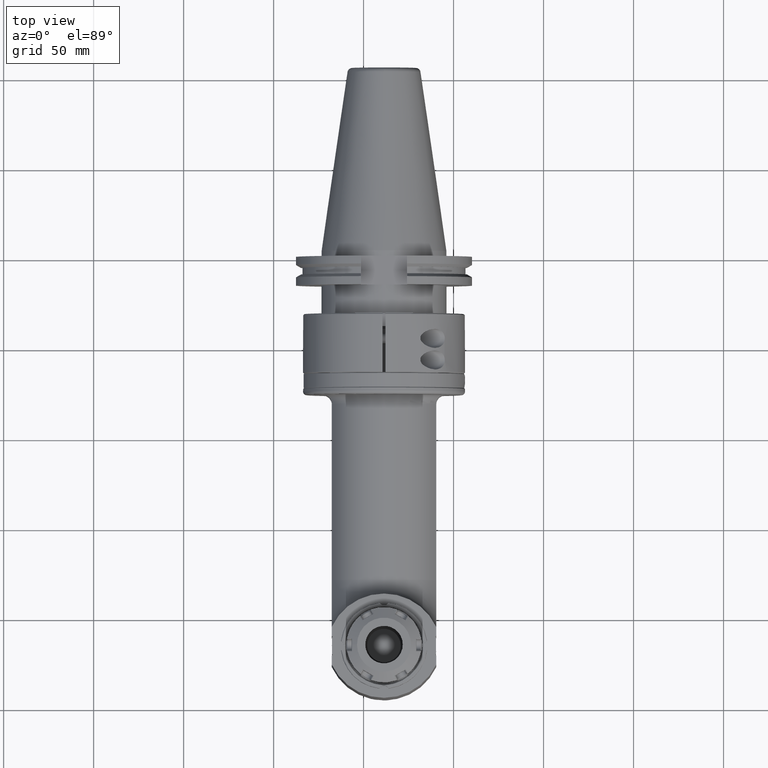
[diagram: clean part render]
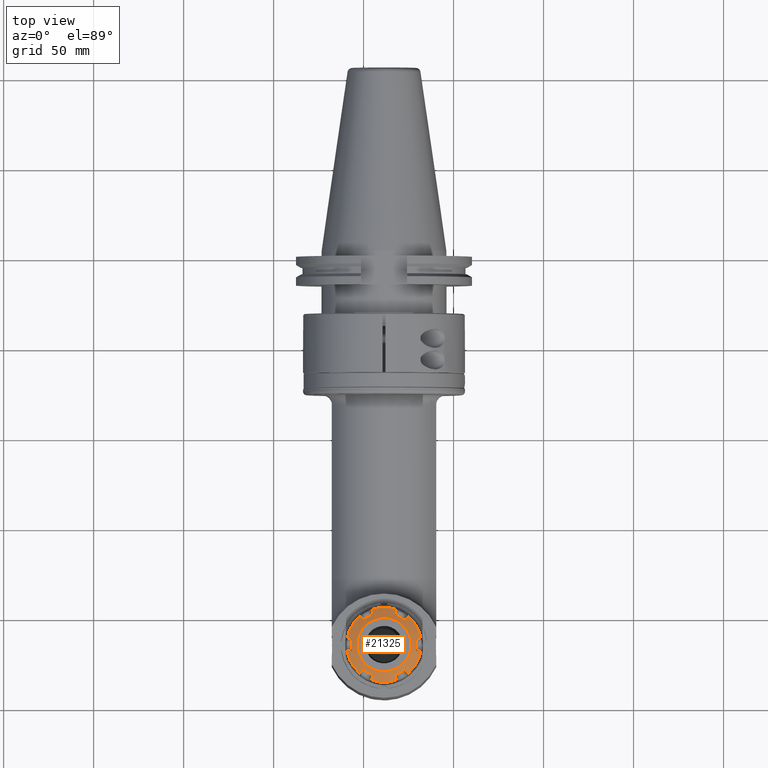
[diagram: same view with one face highlighted and labeled with its STEP entity id]
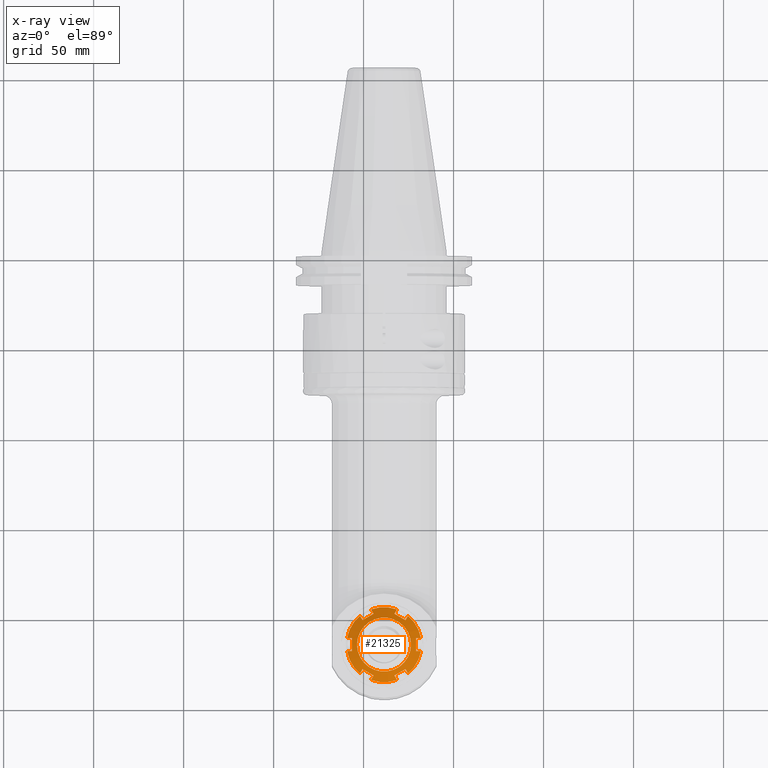
[diagram: x-ray of the same camera — body ghosted, the highlighted face saturated]
A machine part, top view. The second image highlights one B-rep face of the part: STEP entity #21325.
The next image is the same camera in x-ray: the body ghosted, the highlighted face saturated — about 0% of this face is hidden behind the body in this view.
In plain terms, the highlighted conical surface has half-angle 60 deg.
Its self-contained STEP definition (entity closure, byte-faithful):
#38=(
BOUNDED_CURVE()
B_SPLINE_CURVE(2,(#34495,#34496,#34497),.UNSPECIFIED.,.F.,.F.)
B_SPLINE_CURVE_WITH_KNOTS((3,3),(-5.71480727500744,-5.70939579705598),
 .UNSPECIFIED.)
CURVE()
GEOMETRIC_REPRESENTATION_ITEM()
RATIONAL_B_SPLINE_CURVE((1.38530112424961,1.38617910511655,1.38705507773956))
REPRESENTATION_ITEM('')
);
#39=(
BOUNDED_CURVE()
B_SPLINE_CURVE(2,(#34522,#34523,#34524),.UNSPECIFIED.,.F.,.F.)
B_SPLINE_CURVE_WITH_KNOTS((3,3),(5.70939541777021,5.71480727411024),
 .UNSPECIFIED.)
CURVE()
GEOMETRIC_REPRESENTATION_ITEM()
RATIONAL_B_SPLINE_CURVE((1.38705520009317,1.38617916635966,1.38530112410136))
REPRESENTATION_ITEM('')
);
#40=(
BOUNDED_CURVE()
B_SPLINE_CURVE(2,(#34526,#34527,#34528),.UNSPECIFIED.,.F.,.F.)
B_SPLINE_CURVE_WITH_KNOTS((3,3),(0.983136933448719,0.988548446117281),
 .UNSPECIFIED.)
CURVE()
GEOMETRIC_REPRESENTATION_ITEM()
RATIONAL_B_SPLINE_CURVE((1.38530112341754,1.38617910991716,1.38705508814708))
REPRESENTATION_ITEM('')
);
#41=(
BOUNDED_CURVE()
B_SPLINE_CURVE(2,(#34554,#34555,#34556),.UNSPECIFIED.,.F.,.F.)
B_SPLINE_CURVE_WITH_KNOTS((3,3),(5.70939569852918,5.7148072694588),
 .UNSPECIFIED.)
CURVE()
GEOMETRIC_REPRESENTATION_ITEM()
RATIONAL_B_SPLINE_CURVE((1.38705510692146,1.38617911928225,1.38530112333009))
REPRESENTATION_ITEM('')
);
#42=(
BOUNDED_CURVE()
B_SPLINE_CURVE(2,(#34558,#34559,#34560),.UNSPECIFIED.,.F.,.F.)
B_SPLINE_CURVE_WITH_KNOTS((3,3),(0.983136932263361,0.988548410212516),
 .UNSPECIFIED.)
CURVE()
GEOMETRIC_REPRESENTATION_ITEM()
RATIONAL_B_SPLINE_CURVE((1.3853011229098,1.38617910377642,1.38705507639911))
REPRESENTATION_ITEM('')
);
#43=(
BOUNDED_CURVE()
B_SPLINE_CURVE(2,(#34586,#34587,#34588),.UNSPECIFIED.,.F.,.F.)
B_SPLINE_CURVE_WITH_KNOTS((3,3),(5.70939596718503,5.71480727067395),
 .UNSPECIFIED.)
CURVE()
GEOMETRIC_REPRESENTATION_ITEM()
RATIONAL_B_SPLINE_CURVE((1.38705502054067,1.38617907609367,1.38530112353222))
REPRESENTATION_ITEM('')
);
#44=(
BOUNDED_CURVE()
B_SPLINE_CURVE(2,(#34617,#34618,#34619),.UNSPECIFIED.,.F.,.F.)
B_SPLINE_CURVE_WITH_KNOTS((3,3),(5.70939589990304,5.71480727411024),
 .UNSPECIFIED.)
CURVE()
GEOMETRIC_REPRESENTATION_ITEM()
RATIONAL_B_SPLINE_CURVE((1.38705504400452,1.3861790881364,1.38530112410135))
REPRESENTATION_ITEM('')
);
#45=(
BOUNDED_CURVE()
B_SPLINE_CURVE(2,(#34621,#34622,#34623),.UNSPECIFIED.,.F.,.F.)
B_SPLINE_CURVE_WITH_KNOTS((3,3),(0.983136933448721,0.988548446117285),
 .UNSPECIFIED.)
CURVE()
GEOMETRIC_REPRESENTATION_ITEM()
RATIONAL_B_SPLINE_CURVE((1.38530112341754,1.38617910991716,1.38705508814709))
REPRESENTATION_ITEM('')
);
#46=(
BOUNDED_CURVE()
B_SPLINE_CURVE(2,(#34649,#34650,#34651),.UNSPECIFIED.,.F.,.F.)
B_SPLINE_CURVE_WITH_KNOTS((3,3),(5.70939579745378,5.71480726945879),
 .UNSPECIFIED.)
CURVE()
GEOMETRIC_REPRESENTATION_ITEM()
RATIONAL_B_SPLINE_CURVE((1.387055074895,1.38617910323231,1.3853011233301))
REPRESENTATION_ITEM('')
);
#47=(
BOUNDED_CURVE()
B_SPLINE_CURVE(2,(#34653,#34654,#34655),.UNSPECIFIED.,.F.,.F.)
B_SPLINE_CURVE_WITH_KNOTS((3,3),(0.983136932263362,0.988548410212518),
 .UNSPECIFIED.)
CURVE()
GEOMETRIC_REPRESENTATION_ITEM()
RATIONAL_B_SPLINE_CURVE((1.3853011229098,1.38617910377642,1.38705507639911))
REPRESENTATION_ITEM('')
);
#48=(
BOUNDED_CURVE()
B_SPLINE_CURVE(2,(#34681,#34682,#34683),.UNSPECIFIED.,.F.,.F.)
B_SPLINE_CURVE_WITH_KNOTS((3,3),(5.70939579867006,5.71480727067391),
 .UNSPECIFIED.)
CURVE()
GEOMETRIC_REPRESENTATION_ITEM()
RATIONAL_B_SPLINE_CURVE((1.38705507509674,1.38617910343424,1.38530112353223))
REPRESENTATION_ITEM('')
);
#49=(
BOUNDED_CURVE()
B_SPLINE_CURVE(2,(#34685,#34686,#34687),.UNSPECIFIED.,.F.,.F.)
B_SPLINE_CURVE_WITH_KNOTS((3,3),(-5.71480727500743,-5.70939579705598),
 .UNSPECIFIED.)
CURVE()
GEOMETRIC_REPRESENTATION_ITEM()
RATIONAL_B_SPLINE_CURVE((1.38530112424962,1.38617910511655,1.38705507773956))
REPRESENTATION_ITEM('')
);
#159=CONICAL_SURFACE('',#22859,0.705708661417323,1.0471975511966);
#1297=B_SPLINE_CURVE_WITH_KNOTS('',3,(#34509,#34510,#34511,#34512,#34513,
#34514),.UNSPECIFIED.,.F.,.F.,(4,2,4),(1.1437518864715E-6,0.179082550714123,
0.355925674934522),.UNSPECIFIED.);
#1298=B_SPLINE_CURVE_WITH_KNOTS('',3,(#34516,#34517,#34518,#34519,#34520,
#34521),.UNSPECIFIED.,.F.,.F.,(4,2,4),(8.81218616852435E-6,0.161408135810613,
0.317184350866086),.UNSPECIFIED.);
#1299=B_SPLINE_CURVE_WITH_KNOTS('',3,(#34530,#34531,#34532,#34533,#34534,
#34535),.UNSPECIFIED.,.F.,.F.,(4,2,4),(9.99999962096589E-7,0.154867603608836,
0.315885763912608),.UNSPECIFIED.);
#1300=B_SPLINE_CURVE_WITH_KNOTS('',3,(#34537,#34538,#34539,#34540,#34541,
#34542,#34543,#34544,#34545,#34546),.UNSPECIFIED.,.F.,.F.,(4,2,2,2,4),(6.92224531232847E-6,
0.178809516979941,0.355603922170857,0.531692687036744,0.711222388679774),
 .UNSPECIFIED.);
#1301=B_SPLINE_CURVE_WITH_KNOTS('',3,(#34548,#34549,#34550,#34551,#34552,
#34553),.UNSPECIFIED.,.F.,.F.,(4,2,4),(3.031752801579E-7,0.161653092336991,
0.317218719485604),.UNSPECIFIED.);
#1302=B_SPLINE_CURVE_WITH_KNOTS('',3,(#34562,#34563,#34564,#34565,#34566,
#34567),.UNSPECIFIED.,.F.,.F.,(4,2,4),(9.99999963141596E-7,0.154834427787643,
0.315881929564567),.UNSPECIFIED.);
#1303=B_SPLINE_CURVE_WITH_KNOTS('',3,(#34569,#34570,#34571,#34572,#34573,
#34574,#34575,#34576,#34577,#34578),.UNSPECIFIED.,.F.,.F.,(4,2,2,2,4),(1.00662526687387E-5,
0.179957906361474,0.356455261793115,0.533654497714069,0.712877034540706),
 .UNSPECIFIED.);
#1304=B_SPLINE_CURVE_WITH_KNOTS('',3,(#34580,#34581,#34582,#34583,#34584,
#34585),.UNSPECIFIED.,.F.,.F.,(4,2,4),(4.20002758120641E-6,0.161872951618232,
0.317243653445743),.UNSPECIFIED.);
#1305=B_SPLINE_CURVE_WITH_KNOTS('',3,(#34590,#34591,#34592,#34593,#34594,
#34595),.UNSPECIFIED.,.F.,.F.,(4,2,4),(9.99999961785235E-7,0.154834279668677,
0.315869180523986),.UNSPECIFIED.);
#1306=B_SPLINE_CURVE_WITH_KNOTS('',3,(#34597,#34598,#34599,#34600,#34601,
#34602),.UNSPECIFIED.,.F.,.F.,(4,2,4),(7.37356110766668E-6,0.17680702076961,
0.355849967192737),.UNSPECIFIED.);
#1307=B_SPLINE_CURVE_WITH_KNOTS('',3,(#34604,#34605,#34606,#34607,#34608,
#34609),.UNSPECIFIED.,.F.,.F.,(4,2,4),(1.1437518261892E-6,0.179082494417271,
0.355925381358529),.UNSPECIFIED.);
#1308=B_SPLINE_CURVE_WITH_KNOTS('',3,(#34611,#34612,#34613,#34614,#34615,
#34616),.UNSPECIFIED.,.F.,.F.,(4,2,4),(8.79176390152351E-6,0.161813927913795,
0.317235615422985),.UNSPECIFIED.);
#1309=B_SPLINE_CURVE_WITH_KNOTS('',3,(#34625,#34626,#34627,#34628,#34629,
#34630),.UNSPECIFIED.,.F.,.F.,(4,2,4),(9.99999962413875E-7,0.154867093879018,
0.315885763931179),.UNSPECIFIED.);
#1310=B_SPLINE_CURVE_WITH_KNOTS('',3,(#34632,#34633,#34634,#34635,#34636,
#34637,#34638,#34639,#34640,#34641),.UNSPECIFIED.,.F.,.F.,(4,2,2,2,4),(6.92224534410275E-6,
0.178809510055919,0.355603908359235,0.531692682473191,0.711222337863822),
 .UNSPECIFIED.);
#1311=B_SPLINE_CURVE_WITH_KNOTS('',3,(#34643,#34644,#34645,#34646,#34647,
#34648),.UNSPECIFIED.,.F.,.F.,(4,2,4),(3.24065266827637E-7,0.161736173359822,
0.317229355839682),.UNSPECIFIED.);
#1312=B_SPLINE_CURVE_WITH_KNOTS('',3,(#34657,#34658,#34659,#34660,#34661,
#34662),.UNSPECIFIED.,.F.,.F.,(4,2,4),(9.99999959047533E-7,0.154834427782428,
0.31588192955788),.UNSPECIFIED.);
#1313=B_SPLINE_CURVE_WITH_KNOTS('',3,(#34664,#34665,#34666,#34667,#34668,
#34669,#34670,#34671,#34672,#34673),.UNSPECIFIED.,.F.,.F.,(4,2,2,2,4),(1.00662526271291E-5,
0.179957918310093,0.356455285255329,0.533654498813924,0.712877120887501),
 .UNSPECIFIED.);
#1314=B_SPLINE_CURVE_WITH_KNOTS('',3,(#34675,#34676,#34677,#34678,#34679,
#34680),.UNSPECIFIED.,.F.,.F.,(4,2,4),(4.15167660907887E-6,0.161732284549731,
0.317225240770883),.UNSPECIFIED.);
#1315=B_SPLINE_CURVE_WITH_KNOTS('',3,(#34689,#34690,#34691,#34692,#34693,
#34694),.UNSPECIFIED.,.F.,.F.,(4,2,4),(9.9999996134616E-7,0.154834789478253,
0.315869180511777),.UNSPECIFIED.);
#1316=B_SPLINE_CURVE_WITH_KNOTS('',3,(#34695,#34696,#34697,#34698,#34699,
#34700),.UNSPECIFIED.,.F.,.F.,(4,2,4),(7.37356111511949E-6,0.176807020769685,
0.355849967192694),.UNSPECIFIED.);
#1752=FACE_OUTER_BOUND('',#3028,.T.);
#3028=EDGE_LOOP('',(#15974,#15975,#15976,#15977,#15978,#15979,#15980,#15981,
#15982,#15983,#15984,#15985,#15986,#15987,#15988,#15989,#15990,#15991,#15992,
#15993,#15994,#15995,#15996,#15997,#15998,#15999,#16000,#16001,#16002,#16003,
#16004,#16005,#16006,#16007,#16008,#16009,#16010,#16011,#16012,#16013,#16014));
#4376=CIRCLE('',#22852,0.820866141732283);
#4377=CIRCLE('',#22853,0.820866141732284);
#4378=CIRCLE('',#22854,0.820866141732284);
#4379=CIRCLE('',#22855,0.820866141732284);
#4380=CIRCLE('',#22856,0.820866141732284);
#4381=CIRCLE('',#22857,0.820866141732283);
#4382=CIRCLE('',#22860,0.590551181102362);
#5384=LINE('',#34702,#7507);
#7507=VECTOR('',#25900,0.705708661417323);
#9700=VERTEX_POINT('',#34180);
#9701=VERTEX_POINT('',#34182);
#9704=VERTEX_POINT('',#34213);
#9705=VERTEX_POINT('',#34215);
#9708=VERTEX_POINT('',#34246);
#9709=VERTEX_POINT('',#34248);
#9713=VERTEX_POINT('',#34283);
#9714=VERTEX_POINT('',#34285);
#9717=VERTEX_POINT('',#34316);
#9718=VERTEX_POINT('',#34318);
#9721=VERTEX_POINT('',#34349);
#9722=VERTEX_POINT('',#34351);
#9727=VERTEX_POINT('',#34494);
#9729=VERTEX_POINT('',#34507);
#9730=VERTEX_POINT('',#34508);
#9731=VERTEX_POINT('',#34515);
#9732=VERTEX_POINT('',#34525);
#9733=VERTEX_POINT('',#34529);
#9734=VERTEX_POINT('',#34536);
#9735=VERTEX_POINT('',#34547);
#9736=VERTEX_POINT('',#34557);
#9737=VERTEX_POINT('',#34561);
#9738=VERTEX_POINT('',#34568);
#9739=VERTEX_POINT('',#34579);
#9740=VERTEX_POINT('',#34589);
#9741=VERTEX_POINT('',#34596);
#9742=VERTEX_POINT('',#34603);
#9743=VERTEX_POINT('',#34610);
#9744=VERTEX_POINT('',#34620);
#9745=VERTEX_POINT('',#34624);
#9746=VERTEX_POINT('',#34631);
#9747=VERTEX_POINT('',#34642);
#9748=VERTEX_POINT('',#34652);
#9749=VERTEX_POINT('',#34656);
#9750=VERTEX_POINT('',#34663);
#9751=VERTEX_POINT('',#34674);
#9752=VERTEX_POINT('',#34684);
#9753=VERTEX_POINT('',#34688);
#9754=VERTEX_POINT('',#34701);
#12047=EDGE_CURVE('',#9700,#9701,#4376,.T.);
#12051=EDGE_CURVE('',#9704,#9705,#4377,.T.);
#12055=EDGE_CURVE('',#9708,#9709,#4378,.T.);
#12061=EDGE_CURVE('',#9714,#9713,#4379,.T.);
#12065=EDGE_CURVE('',#9718,#9717,#4380,.T.);
#12069=EDGE_CURVE('',#9722,#9721,#4381,.T.);
#12077=EDGE_CURVE('',#9713,#9727,#38,.T.);
#12080=EDGE_CURVE('',#9729,#9730,#1297,.T.);
#12081=EDGE_CURVE('',#9730,#9731,#1298,.T.);
#12082=EDGE_CURVE('',#9731,#9722,#39,.T.);
#12083=EDGE_CURVE('',#9721,#9732,#40,.T.);
#12084=EDGE_CURVE('',#9732,#9733,#1299,.T.);
#12085=EDGE_CURVE('',#9733,#9734,#1300,.T.);
#12086=EDGE_CURVE('',#9734,#9735,#1301,.T.);
#12087=EDGE_CURVE('',#9735,#9718,#41,.T.);
#12088=EDGE_CURVE('',#9717,#9736,#42,.T.);
#12089=EDGE_CURVE('',#9736,#9737,#1302,.T.);
#12090=EDGE_CURVE('',#9737,#9738,#1303,.T.);
#12091=EDGE_CURVE('',#9738,#9739,#1304,.T.);
#12092=EDGE_CURVE('',#9739,#9714,#43,.T.);
#12093=EDGE_CURVE('',#9727,#9740,#1305,.T.);
#12094=EDGE_CURVE('',#9740,#9741,#1306,.T.);
#12095=EDGE_CURVE('',#9741,#9742,#1307,.T.);
#12096=EDGE_CURVE('',#9742,#9743,#1308,.T.);
#12097=EDGE_CURVE('',#9743,#9709,#44,.T.);
#12098=EDGE_CURVE('',#9708,#9744,#45,.T.);
#12099=EDGE_CURVE('',#9744,#9745,#1309,.T.);
#12100=EDGE_CURVE('',#9745,#9746,#1310,.T.);
#12101=EDGE_CURVE('',#9746,#9747,#1311,.T.);
#12102=EDGE_CURVE('',#9747,#9705,#46,.T.);
#12103=EDGE_CURVE('',#9704,#9748,#47,.T.);
#12104=EDGE_CURVE('',#9748,#9749,#1312,.T.);
#12105=EDGE_CURVE('',#9749,#9750,#1313,.T.);
#12106=EDGE_CURVE('',#9750,#9751,#1314,.T.);
#12107=EDGE_CURVE('',#9751,#9701,#48,.T.);
#12108=EDGE_CURVE('',#9700,#9752,#49,.T.);
#12109=EDGE_CURVE('',#9752,#9753,#1315,.T.);
#12110=EDGE_CURVE('',#9753,#9729,#1316,.T.);
#12111=EDGE_CURVE('',#9729,#9754,#5384,.T.);
#12112=EDGE_CURVE('',#9754,#9754,#4382,.T.);
#15974=ORIENTED_EDGE('',*,*,#12080,.T.);
#15975=ORIENTED_EDGE('',*,*,#12081,.T.);
#15976=ORIENTED_EDGE('',*,*,#12082,.T.);
#15977=ORIENTED_EDGE('',*,*,#12069,.T.);
#15978=ORIENTED_EDGE('',*,*,#12083,.T.);
#15979=ORIENTED_EDGE('',*,*,#12084,.T.);
#15980=ORIENTED_EDGE('',*,*,#12085,.T.);
#15981=ORIENTED_EDGE('',*,*,#12086,.T.);
#15982=ORIENTED_EDGE('',*,*,#12087,.T.);
#15983=ORIENTED_EDGE('',*,*,#12065,.T.);
#15984=ORIENTED_EDGE('',*,*,#12088,.T.);
#15985=ORIENTED_EDGE('',*,*,#12089,.T.);
#15986=ORIENTED_EDGE('',*,*,#12090,.T.);
#15987=ORIENTED_EDGE('',*,*,#12091,.T.);
#15988=ORIENTED_EDGE('',*,*,#12092,.T.);
#15989=ORIENTED_EDGE('',*,*,#12061,.T.);
#15990=ORIENTED_EDGE('',*,*,#12077,.T.);
#15991=ORIENTED_EDGE('',*,*,#12093,.T.);
#15992=ORIENTED_EDGE('',*,*,#12094,.T.);
#15993=ORIENTED_EDGE('',*,*,#12095,.T.);
#15994=ORIENTED_EDGE('',*,*,#12096,.T.);
#15995=ORIENTED_EDGE('',*,*,#12097,.T.);
#15996=ORIENTED_EDGE('',*,*,#12055,.F.);
#15997=ORIENTED_EDGE('',*,*,#12098,.T.);
#15998=ORIENTED_EDGE('',*,*,#12099,.T.);
#15999=ORIENTED_EDGE('',*,*,#12100,.T.);
#16000=ORIENTED_EDGE('',*,*,#12101,.T.);
#16001=ORIENTED_EDGE('',*,*,#12102,.T.);
#16002=ORIENTED_EDGE('',*,*,#12051,.F.);
#16003=ORIENTED_EDGE('',*,*,#12103,.T.);
#16004=ORIENTED_EDGE('',*,*,#12104,.T.);
#16005=ORIENTED_EDGE('',*,*,#12105,.T.);
#16006=ORIENTED_EDGE('',*,*,#12106,.T.);
#16007=ORIENTED_EDGE('',*,*,#12107,.T.);
#16008=ORIENTED_EDGE('',*,*,#12047,.F.);
#16009=ORIENTED_EDGE('',*,*,#12108,.T.);
#16010=ORIENTED_EDGE('',*,*,#12109,.T.);
#16011=ORIENTED_EDGE('',*,*,#12110,.T.);
#16012=ORIENTED_EDGE('',*,*,#12111,.T.);
#16013=ORIENTED_EDGE('',*,*,#12112,.F.);
#16014=ORIENTED_EDGE('',*,*,#12111,.F.);
#21325=ADVANCED_FACE('',(#1752),#159,.T.);
#22852=AXIS2_PLACEMENT_3D('',#34183,#25868,#25869);
#22853=AXIS2_PLACEMENT_3D('',#34216,#25872,#25873);
#22854=AXIS2_PLACEMENT_3D('',#34249,#25876,#25877);
#22855=AXIS2_PLACEMENT_3D('',#34286,#25881,#25882);
#22856=AXIS2_PLACEMENT_3D('',#34319,#25885,#25886);
#22857=AXIS2_PLACEMENT_3D('',#34352,#25889,#25890);
#22859=AXIS2_PLACEMENT_3D('',#34506,#25898,#25899);
#22860=AXIS2_PLACEMENT_3D('',#34703,#25901,#25902);
#25868=DIRECTION('center_axis',(0.,0.,-1.));
#25869=DIRECTION('ref_axis',(-0.985098665484215,0.171990171990203,0.));
#25872=DIRECTION('center_axis',(0.,0.,-1.));
#25873=DIRECTION('ref_axis',(-0.343601474597386,0.939115555538562,0.));
#25876=DIRECTION('center_axis',(0.,0.,-1.));
#25877=DIRECTION('ref_axis',(0.64149719088688,0.767125383548376,0.));
#25881=DIRECTION('center_axis',(0.,0.,1.));
#25882=DIRECTION('ref_axis',(0.64149719088688,-0.767125383548376,0.));
#25885=DIRECTION('center_axis',(0.,0.,1.));
#25886=DIRECTION('ref_axis',(-0.343601474597386,-0.939115555538562,0.));
#25889=DIRECTION('center_axis',(0.,0.,1.));
#25890=DIRECTION('ref_axis',(-0.985098665484215,-0.171990171990203,0.));
#25898=DIRECTION('center_axis',(0.,0.,-1.));
#25899=DIRECTION('ref_axis',(1.,0.,0.));
#25900=DIRECTION('',(0.866025403784438,-1.06057523872491E-16,0.5));
#25901=DIRECTION('center_axis',(0.,0.,1.));
#25902=DIRECTION('ref_axis',(-1.,0.,0.));
#34180=CARTESIAN_POINT('',(-0.808634140761811,-6.82732302811024,3.03631893406457));
#34182=CARTESIAN_POINT('',(-0.526583324015354,-6.33879668318898,3.03631893406457));
#34183=CARTESIAN_POINT('Origin',(0.,-6.96850393700787,3.03631893406457));
#34213=CARTESIAN_POINT('',(-0.28205081674626,-6.19761577429134,3.03631893406457));
#34215=CARTESIAN_POINT('',(0.28205081674626,-6.19761577429134,3.03631893406457));
#34216=CARTESIAN_POINT('Origin',(0.,-6.96850393700787,3.03631893406457));
#34246=CARTESIAN_POINT('',(0.526583324015354,-6.33879668318898,3.03631893406457));
#34248=CARTESIAN_POINT('',(0.808634140761811,-6.82732302811024,3.03631893406457));
#34249=CARTESIAN_POINT('Origin',(0.,-6.96850393700787,3.03631893406457));
#34283=CARTESIAN_POINT('',(0.808634140761811,-7.10968484590551,3.03631893406457));
#34285=CARTESIAN_POINT('',(0.526583324015354,-7.59821119082677,3.03631893406457));
#34286=CARTESIAN_POINT('Origin',(0.,-6.96850393700787,3.03631893406457));
#34316=CARTESIAN_POINT('',(0.28205081674626,-7.73939209972441,3.03631893406457));
#34318=CARTESIAN_POINT('',(-0.28205081674626,-7.73939209972441,3.03631893406457));
#34319=CARTESIAN_POINT('Origin',(0.,-6.96850393700787,3.03631893406457));
#34349=CARTESIAN_POINT('',(-0.526583324015354,-7.59821119082677,3.03631893406457));
#34351=CARTESIAN_POINT('',(-0.808634140761811,-7.10968484590551,3.03631893406457));
#34352=CARTESIAN_POINT('Origin',(0.,-6.96850393700787,3.03631893406457));
#34494=CARTESIAN_POINT('',(0.807199232687008,-7.10797770912598,3.0373038243563));
#34495=CARTESIAN_POINT('Ctrl Pts',(0.808634140775223,-7.1096848459195,3.03631893405546));
#34496=CARTESIAN_POINT('Ctrl Pts',(0.80791594047494,-7.10883038968791,3.03681225459078));
#34497=CARTESIAN_POINT('Ctrl Pts',(0.807199232700033,-7.10797770914148,
3.03730382434764));
#34506=CARTESIAN_POINT('Origin',(0.,-6.96850393700787,3.10280513632362));
#34507=CARTESIAN_POINT('',(-0.698817950009757,-6.96850393698334,3.10678327568068));
#34508=CARTESIAN_POINT('',(-0.698629678472703,-7.10822765296486,3.09890445633687));
#34509=CARTESIAN_POINT('Ctrl Pts',(-0.698817374304553,-6.96850393691155,
3.10678382279324));
#34510=CARTESIAN_POINT('Ctrl Pts',(-0.698812184750675,-6.99200543236491,
3.10678681898544));
#34511=CARTESIAN_POINT('Ctrl Pts',(-0.698797658061676,-7.01544756524945,
3.10611058372019));
#34512=CARTESIAN_POINT('Ctrl Pts',(-0.698737324819904,-7.0620763232613,
3.10344645513932));
#34513=CARTESIAN_POINT('Ctrl Pts',(-0.698691520885594,-7.08516873592042,
3.10148031328113));
#34514=CARTESIAN_POINT('Ctrl Pts',(-0.698629678472703,-7.10822765296486,
3.09890445633687));
#34515=CARTESIAN_POINT('',(-0.807199132520866,-7.10797758995669,3.03730389305748));
#34516=CARTESIAN_POINT('Ctrl Pts',(-0.698629678472703,-7.10822765296486,
3.09890445633687));
#34517=CARTESIAN_POINT('Ctrl Pts',(-0.717064169330059,-7.10817784652421,
3.08847361402586));
#34518=CARTESIAN_POINT('Ctrl Pts',(-0.735504271599443,-7.10813307377726,
3.07802277833086));
#34519=CARTESIAN_POINT('Ctrl Pts',(-0.771691553216421,-7.10805165069328,
3.05748775350061));
#34520=CARTESIAN_POINT('Ctrl Pts',(-0.789495608722763,-7.10801464487443,
3.04737214027981));
#34521=CARTESIAN_POINT('Ctrl Pts',(-0.807199132520926,-7.10797758995746,
3.03730389305758));
#34522=CARTESIAN_POINT('Ctrl Pts',(-0.807199132532805,-7.10797758997336,
3.03730389304926));
#34523=CARTESIAN_POINT('Ctrl Pts',(-0.807915890286528,-7.10883032998052,
3.03681228906415));
#34524=CARTESIAN_POINT('Ctrl Pts',(-0.808634140774042,-7.10968484592079,
3.036318934056));
#34525=CARTESIAN_POINT('',(-0.524387432094882,-7.59782208987795,3.03730383066063));
#34526=CARTESIAN_POINT('Ctrl Pts',(-0.526583324015894,-7.5982111908248,
3.03631893406499));
#34527=CARTESIAN_POINT('Ctrl Pts',(-0.525484236015438,-7.59801643798679,
3.03681225776349));
#34528=CARTESIAN_POINT('Ctrl Pts',(-0.524387432095385,-7.59782208987628,
3.03730383066109));
#34529=CARTESIAN_POINT('',(-0.470318226558145,-7.50367168625073,3.09890542488553));
#34530=CARTESIAN_POINT('Ctrl Pts',(-0.524387432094812,-7.59782208987795,
3.03730383066056));
#34531=CARTESIAN_POINT('Ctrl Pts',(-0.515586186411784,-7.58250390438057,
3.04735105493683));
#34532=CARTESIAN_POINT('Ctrl Pts',(-0.506731216442816,-7.56709294466366,
3.0574494910398));
#34533=CARTESIAN_POINT('Ctrl Pts',(-0.488705505691996,-7.53570888960134,
3.07798743510358));
#34534=CARTESIAN_POINT('Ctrl Pts',(-0.479509230796623,-7.51969083774439,
3.08845534701329));
#34535=CARTESIAN_POINT('Ctrl Pts',(-0.470318226530838,-7.50367168625937,
3.09890542487475));
#34536=CARTESIAN_POINT('',(-0.228308379053637,-7.64339298875837,3.09890696695956));
#34537=CARTESIAN_POINT('Ctrl Pts',(-0.470318226574541,-7.5036716862878,
3.09890542484576));
#34538=CARTESIAN_POINT('Ctrl Pts',(-0.450153674227656,-7.51538511984614,
3.10151081081626));
#34539=CARTESIAN_POINT('Ctrl Pts',(-0.429957106873638,-7.52710069715736,
3.10349124175787));
#34540=CARTESIAN_POINT('Ctrl Pts',(-0.389603303552175,-7.55047555931118,
3.10612196070742));
#34541=CARTESIAN_POINT('Ctrl Pts',(-0.369527767880404,-7.56208411917781,
3.10678251075105));
#34542=CARTESIAN_POINT('Ctrl Pts',(-0.329384261528893,-7.58525992105826,
3.10678332529195));
#34543=CARTESIAN_POINT('Ctrl Pts',(-0.309394641655208,-7.59678438991945,
3.10612843914406));
#34544=CARTESIAN_POINT('Ctrl Pts',(-0.268988933933289,-7.62003730780213,
3.10351038414159));
#34545=CARTESIAN_POINT('Ctrl Pts',(-0.248663952987971,-7.63171162013575,
3.10152952215688));
#34546=CARTESIAN_POINT('Ctrl Pts',(-0.228308379053637,-7.64339298875838,
3.09890696695956));
#34547=CARTESIAN_POINT('',(-0.282811799579764,-7.7372958285315,3.03730384123898));
#34548=CARTESIAN_POINT('Ctrl Pts',(-0.228308379053636,-7.64339298875837,
3.09890696695956));
#34549=CARTESIAN_POINT('Ctrl Pts',(-0.23758335919546,-7.65935791023956,
3.0884597053664));
#34550=CARTESIAN_POINT('Ctrl Pts',(-0.246855065541525,-7.67532736746329,
3.07799427462062));
#34551=CARTESIAN_POINT('Ctrl Pts',(-0.265021677188053,-7.70663022031896,
3.05745627600419));
#34552=CARTESIAN_POINT('Ctrl Pts',(-0.273943275846055,-7.72200912291244,
3.04735469102919));
#34553=CARTESIAN_POINT('Ctrl Pts',(-0.282811799580081,-7.73729582853114,
3.03730384123872));
#34554=CARTESIAN_POINT('Ctrl Pts',(-0.282811799572906,-7.73729582855028,
3.03730384122977));
#34555=CARTESIAN_POINT('Ctrl Pts',(-0.282431703932702,-7.73834287390531,
3.03681226306196));
#34556=CARTESIAN_POINT('Ctrl Pts',(-0.282050816739577,-7.73939209974262,
3.03631893405559));
#34557=CARTESIAN_POINT('',(0.282811786525945,-7.73729586448819,3.0373038243563));
#34558=CARTESIAN_POINT('Ctrl Pts',(0.282050816745748,-7.73939209972414,
3.03631893406438));
#34559=CARTESIAN_POINT('Ctrl Pts',(0.282431697398814,-7.73834289190266,
3.0368122546));
#34560=CARTESIAN_POINT('Ctrl Pts',(0.282811786526117,-7.73729586448865,
3.03730382435715));
#34561=CARTESIAN_POINT('',(0.228308392183958,-7.64339298764416,3.09890696513966));
#34562=CARTESIAN_POINT('Ctrl Pts',(0.282811786525543,-7.73729586448895,
3.0373038243571));
#34563=CARTESIAN_POINT('Ctrl Pts',(0.273948359360435,-7.72201792871993,
3.04734890626085));
#34564=CARTESIAN_POINT('Ctrl Pts',(0.265031051251719,-7.70664636931068,
3.05744566796405));
#34565=CARTESIAN_POINT('Ctrl Pts',(0.246863836602448,-7.67534241733758,
3.07798440586552));
#34566=CARTESIAN_POINT('Ctrl Pts',(0.237588038970349,-7.65936591251032,
3.08845446304015));
#34567=CARTESIAN_POINT('Ctrl Pts',(0.228308392183957,-7.64339298764416,
3.09890696513966));
#34568=CARTESIAN_POINT('',(0.470318181556928,-7.50367170628416,3.09890543334878));
#34569=CARTESIAN_POINT('Ctrl Pts',(0.228308392183958,-7.64339298764416,
3.09890696513966));
#34570=CARTESIAN_POINT('Ctrl Pts',(0.248663885182598,-7.63171166112394,
3.10152951204637));
#34571=CARTESIAN_POINT('Ctrl Pts',(0.268988822918053,-7.62003736468322,
3.10351038184525));
#34572=CARTESIAN_POINT('Ctrl Pts',(0.309394690650755,-7.59678438389945,
3.10612842946524));
#34573=CARTESIAN_POINT('Ctrl Pts',(0.329384500179588,-7.58525979429296,
3.10678332404725));
#34574=CARTESIAN_POINT('Ctrl Pts',(0.369527301608345,-7.56208437355621,
3.10678251388242));
#34575=CARTESIAN_POINT('Ctrl Pts',(0.389602153159155,-7.55047622159848,
3.10612199847121));
#34576=CARTESIAN_POINT('Ctrl Pts',(0.4299558527697,-7.52710142854004,3.10349136078205));
#34577=CARTESIAN_POINT('Ctrl Pts',(0.45015290984771,-7.51538555296775,3.10151091343443));
#34578=CARTESIAN_POINT('Ctrl Pts',(0.470318181573468,-7.50367170632156,
3.09890543330866));
#34579=CARTESIAN_POINT('',(0.524387516833858,-7.5978221048937,3.03730379268189));
#34580=CARTESIAN_POINT('Ctrl Pts',(0.47031818152938,-7.50367170629287,3.0989054333379));
#34581=CARTESIAN_POINT('Ctrl Pts',(0.479518967970275,-7.51970792633236,
3.08844422484539));
#34582=CARTESIAN_POINT('Ctrl Pts',(0.488723884267692,-7.53574096706426,
3.07796648704045));
#34583=CARTESIAN_POINT('Ctrl Pts',(0.506750966074321,-7.56712722868931,
3.05742700783746));
#34584=CARTESIAN_POINT('Ctrl Pts',(0.515597546619888,-7.58252348098528,
3.04733817300721));
#34585=CARTESIAN_POINT('Ctrl Pts',(0.524387516834421,-7.59782210489313,
3.03730379268151));
#34586=CARTESIAN_POINT('Ctrl Pts',(0.52438751685388,-7.59782210489611,3.03730379267299));
#34587=CARTESIAN_POINT('Ctrl Pts',(0.525484278492306,-7.59801644551453,
3.03681223869737));
#34588=CARTESIAN_POINT('Ctrl Pts',(0.526583324034826,-7.5982111908292,3.03631893405602));
#34589=CARTESIAN_POINT('',(0.698629639487796,-7.10822756278383,3.09890447236847));
#34590=CARTESIAN_POINT('Ctrl Pts',(0.807199232687086,-7.10797770912693,
3.03730382435643));
#34591=CARTESIAN_POINT('Ctrl Pts',(0.789536527977906,-7.10801469414522,
3.04734885543602));
#34592=CARTESIAN_POINT('Ctrl Pts',(0.771765461862284,-7.10805153033938,
3.05744575978443));
#34593=CARTESIAN_POINT('Ctrl Pts',(0.735573448505957,-7.10813282015092,
3.07798358307769));
#34594=CARTESIAN_POINT('Ctrl Pts',(0.717100905010623,-7.10817764041365,
3.08845283968143));
#34595=CARTESIAN_POINT('Ctrl Pts',(0.698629645515163,-7.10822758293711,
3.09890448292437));
#34596=CARTESIAN_POINT('',(0.698817985660464,-6.96850393690387,3.10678325509773));
#34597=CARTESIAN_POINT('Ctrl Pts',(0.698629682747734,-7.10822756198929,
3.0989044642174));
#34598=CARTESIAN_POINT('Ctrl Pts',(0.698691512318152,-7.08516901743651,
3.10148028460576));
#34599=CARTESIAN_POINT('Ctrl Pts',(0.698737294365809,-7.06207698604906,
3.10344641468315));
#34600=CARTESIAN_POINT('Ctrl Pts',(0.698797632405708,-7.01544824967062,
3.10611057868215));
#34601=CARTESIAN_POINT('Ctrl Pts',(0.698812185688379,-6.99200578625191,
3.10678681844531));
#34602=CARTESIAN_POINT('Ctrl Pts',(0.698817445605967,-6.9685039368471,3.10678378162735));
#34603=CARTESIAN_POINT('',(0.698629641223655,-6.82878033506026,3.09890447715789));
#34604=CARTESIAN_POINT('Ctrl Pts',(0.698817374304594,-6.96850393710419,
3.10678382279322));
#34605=CARTESIAN_POINT('Ctrl Pts',(0.698812184752494,-6.94500244903887,
3.10678681898439));
#34606=CARTESIAN_POINT('Ctrl Pts',(0.698797658071088,-6.92156032348886,
3.10611058414561));
#34607=CARTESIAN_POINT('Ctrl Pts',(0.698737324898416,-6.87493160387095,
3.10344645858472));
#34608=CARTESIAN_POINT('Ctrl Pts',(0.698691521060521,-6.85183922206815,
3.10148032062511));
#34609=CARTESIAN_POINT('Ctrl Pts',(0.698629678780316,-6.82878033585282,
3.09890446916127));
#34610=CARTESIAN_POINT('',(0.807199260149606,-6.82903013221653,3.03730380552087));
#34611=CARTESIAN_POINT('Ctrl Pts',(0.698629646119152,-6.82878031889986,
3.09890448573251));
#34612=CARTESIAN_POINT('Ctrl Pts',(0.717110488562947,-6.82883028829378,
3.08844742017088));
#34613=CARTESIAN_POINT('Ctrl Pts',(0.735591462837461,-6.82887510874656,
3.07797337496671));
#34614=CARTESIAN_POINT('Ctrl Pts',(0.771784715793686,-6.8289563532797,3.05743481780589));
#34615=CARTESIAN_POINT('Ctrl Pts',(0.789547697047278,-6.82899314738976,
3.04734249787662));
#34616=CARTESIAN_POINT('Ctrl Pts',(0.807199260149469,-6.82903013221491,
3.03730380552062));
#34617=CARTESIAN_POINT('Ctrl Pts',(0.807199260161563,-6.82903013220009,
3.03730380551228));
#34618=CARTESIAN_POINT('Ctrl Pts',(0.807915954233687,-6.82817746795611,
3.03681224513984));
#34619=CARTESIAN_POINT('Ctrl Pts',(0.808634140774048,-6.82732302809495,
3.03631893405599));
#34620=CARTESIAN_POINT('',(0.524387432094882,-6.33918578413779,3.03730383066063));
#34621=CARTESIAN_POINT('Ctrl Pts',(0.526583324015894,-6.33879668319095,
3.03631893406499));
#34622=CARTESIAN_POINT('Ctrl Pts',(0.525484236015439,-6.33899143602896,
3.03681225776349));
#34623=CARTESIAN_POINT('Ctrl Pts',(0.524387432095385,-6.33918578413947,
3.03730383066109));
#34624=CARTESIAN_POINT('',(0.470318226558123,-6.43333618776505,3.09890542488556));
#34625=CARTESIAN_POINT('Ctrl Pts',(0.524387432094813,-6.3391857841378,3.03730383066056));
#34626=CARTESIAN_POINT('Ctrl Pts',(0.515586242577382,-6.3545038718814,3.04735099081996));
#34627=CARTESIAN_POINT('Ctrl Pts',(0.506731159378716,-6.36991502870477,
3.05744955605689));
#34628=CARTESIAN_POINT('Ctrl Pts',(0.488705505691859,-6.40129898441465,
3.07798743510373));
#34629=CARTESIAN_POINT('Ctrl Pts',(0.479509230796455,-6.41731703627165,
3.08845534701348));
#34630=CARTESIAN_POINT('Ctrl Pts',(0.470318226530814,-6.43333618775642,
3.09890542487478));
#34631=CARTESIAN_POINT('',(0.228308396417132,-6.29361489522194,3.09890696919676));
#34632=CARTESIAN_POINT('Ctrl Pts',(0.470318226574519,-6.43333618772798,
3.09890542484579));
#34633=CARTESIAN_POINT('Ctrl Pts',(0.4501536750085,-6.42162275462324,3.10151081071539));
#34634=CARTESIAN_POINT('Ctrl Pts',(0.429957108434467,-6.40990717776416,
3.10349124160504));
#34635=CARTESIAN_POINT('Ctrl Pts',(0.389603306687127,-6.38653231651941,
3.10612196055382));
#34636=CARTESIAN_POINT('Ctrl Pts',(0.369527771799042,-6.37492375710312,
3.1067825106482));
#34637=CARTESIAN_POINT('Ctrl Pts',(0.329384265181736,-6.35174795506409,
3.10678332539453));
#34638=CARTESIAN_POINT('Ctrl Pts',(0.309394644270654,-6.34022348560279,
3.10612843927997));
#34639=CARTESIAN_POINT('Ctrl Pts',(0.268988940782732,-6.31697057015456,
3.1035103846199));
#34640=CARTESIAN_POINT('Ctrl Pts',(0.248663965070935,-6.30529626082139,
3.10152952335118));
#34641=CARTESIAN_POINT('Ctrl Pts',(0.228308396417131,-6.29361489522194,
3.09890696919676));
#34642=CARTESIAN_POINT('',(0.282811785691811,-6.19971200722835,3.03730382327756));
#34643=CARTESIAN_POINT('Ctrl Pts',(0.228308396417133,-6.29361489522194,
3.09890696919676));
#34644=CARTESIAN_POINT('Ctrl Pts',(0.23758814977574,-6.2776417732394,3.08845433955601));
#34645=CARTESIAN_POINT('Ctrl Pts',(0.246864038814131,-6.26166509097897,
3.07798416807747));
#34646=CARTESIAN_POINT('Ctrl Pts',(0.265031241354706,-6.23036114155233,
3.05744543347076));
#34647=CARTESIAN_POINT('Ctrl Pts',(0.273948617556488,-6.21498946570992,
3.04734859492804));
#34648=CARTESIAN_POINT('Ctrl Pts',(0.28281178569181,-6.19971200722819,3.03730382327779));
#34649=CARTESIAN_POINT('Ctrl Pts',(0.282811785685232,-6.19971200720924,
3.03730382326883));
#34650=CARTESIAN_POINT('Ctrl Pts',(0.282431696974418,-6.19866498094253,
3.03681225404952));
#34651=CARTESIAN_POINT('Ctrl Pts',(0.282050816739578,-6.19761577427313,
3.03631893405559));
#34652=CARTESIAN_POINT('',(-0.282811786525945,-6.19971200952756,3.0373038243563));
#34653=CARTESIAN_POINT('Ctrl Pts',(-0.282050816745748,-6.19761577429161,
3.03631893406438));
#34654=CARTESIAN_POINT('Ctrl Pts',(-0.282431697398814,-6.19866498211309,
3.0368122546));
#34655=CARTESIAN_POINT('Ctrl Pts',(-0.282811786526117,-6.1997120095271,
3.03730382435715));
#34656=CARTESIAN_POINT('',(-0.228308392183967,-6.29361488637157,3.09890696513965));
#34657=CARTESIAN_POINT('Ctrl Pts',(-0.282811786525543,-6.1997120095268,
3.0373038243571));
#34658=CARTESIAN_POINT('Ctrl Pts',(-0.273948359360733,-6.2149899452953,
3.04734890626051));
#34659=CARTESIAN_POINT('Ctrl Pts',(-0.265031051251818,-6.2303615047049,
3.05744566796393));
#34660=CARTESIAN_POINT('Ctrl Pts',(-0.246863836602117,-6.26166545667874,
3.0779844058659));
#34661=CARTESIAN_POINT('Ctrl Pts',(-0.23758803897021,-6.27764196150567,
3.08845446304031));
#34662=CARTESIAN_POINT('Ctrl Pts',(-0.228308392183967,-6.29361488637157,
3.09890696513965));
#34663=CARTESIAN_POINT('',(-0.470318210885353,-6.43333618476773,3.09890542955893));
#34664=CARTESIAN_POINT('Ctrl Pts',(-0.228308392183968,-6.29361488637157,
3.09890696513964));
#34665=CARTESIAN_POINT('Ctrl Pts',(-0.248663886534227,-6.30529621366744,
3.1015295122205));
#34666=CARTESIAN_POINT('Ctrl Pts',(-0.268988825617366,-6.31697051088314,
3.10351038210834));
#34667=CARTESIAN_POINT('Ctrl Pts',(-0.309394696009875,-6.34022349320325,
3.10612842972604));
#34668=CARTESIAN_POINT('Ctrl Pts',(-0.329384506847656,-6.35174808356834,
3.10678332422153));
#34669=CARTESIAN_POINT('Ctrl Pts',(-0.369527307089784,-6.37492350362866,
3.10678251370742));
#34670=CARTESIAN_POINT('Ctrl Pts',(-0.389602156132975,-6.3865316541397,
3.10612199828744));
#34671=CARTESIAN_POINT('Ctrl Pts',(-0.429955862910947,-6.40990645135046,
3.10349136011089));
#34672=CARTESIAN_POINT('Ctrl Pts',(-0.450152929578662,-6.42162233249396,
3.10151091149528));
#34673=CARTESIAN_POINT('Ctrl Pts',(-0.470318210901698,-6.43333618473078,
3.09890542951929));
#34674=CARTESIAN_POINT('',(-0.52438744856811,-6.33918578122047,3.03730382327756));
#34675=CARTESIAN_POINT('Ctrl Pts',(-0.470318210858128,-6.43333618475912,
3.09890542954819));
#34676=CARTESIAN_POINT('Ctrl Pts',(-0.479510986774845,-6.41731395365437,
3.08845334086148));
#34677=CARTESIAN_POINT('Ctrl Pts',(-0.488708832247706,-6.40129319359837,
3.07798365009001));
#34678=CARTESIAN_POINT('Ctrl Pts',(-0.506734719989276,-6.36990887650069,
3.05744551531393));
#34679=CARTESIAN_POINT('Ctrl Pts',(-0.51558841434063,-6.35450015419226,
3.047348539156));
#34680=CARTESIAN_POINT('Ctrl Pts',(-0.52438744856815,-6.33918578122018,
3.03730382327804));
#34681=CARTESIAN_POINT('Ctrl Pts',(-0.524387448587884,-6.33918578121602,
3.03730382326891));
#34682=CARTESIAN_POINT('Ctrl Pts',(-0.525484244288285,-6.338991434562,3.03681225404978));
#34683=CARTESIAN_POINT('Ctrl Pts',(-0.526583324034813,-6.33879668318654,
3.03631893405603));
#34684=CARTESIAN_POINT('',(-0.807199232687008,-6.82903016488976,3.0373038243563));
#34685=CARTESIAN_POINT('Ctrl Pts',(-0.808634140775219,-6.82732302809625,
3.03631893405546));
#34686=CARTESIAN_POINT('Ctrl Pts',(-0.807915940474939,-6.82817748432784,
3.03681225459078));
#34687=CARTESIAN_POINT('Ctrl Pts',(-0.807199232700035,-6.82903016487427,
3.03730382434764));
#34688=CARTESIAN_POINT('',(-0.698629639487795,-6.82878031123192,3.09890447236847));
#34689=CARTESIAN_POINT('Ctrl Pts',(-0.807199232687086,-6.82903016488881,
3.03730382435643));
#34690=CARTESIAN_POINT('Ctrl Pts',(-0.789536415248496,-6.82899317963448,
3.04734891954684));
#34691=CARTESIAN_POINT('Ctrl Pts',(-0.771765576442024,-6.82895634393372,
3.05744569476405));
#34692=CARTESIAN_POINT('Ctrl Pts',(-0.735573448505782,-6.82887505386482,
3.07798358307779));
#34693=CARTESIAN_POINT('Ctrl Pts',(-0.717100905010687,-6.8288302336021,
3.08845283968139));
#34694=CARTESIAN_POINT('Ctrl Pts',(-0.698629645515162,-6.82878029107863,
3.09890448292437));
#34695=CARTESIAN_POINT('Ctrl Pts',(-0.698629682747734,-6.82878031202646,
3.0989044642174));
#34696=CARTESIAN_POINT('Ctrl Pts',(-0.698691512318152,-6.85183885657925,
3.10148028460576));
#34697=CARTESIAN_POINT('Ctrl Pts',(-0.698737294365809,-6.87493088796669,
3.10344641468315));
#34698=CARTESIAN_POINT('Ctrl Pts',(-0.698797632405708,-6.92155962434509,
3.10611057868215));
#34699=CARTESIAN_POINT('Ctrl Pts',(-0.698812185688379,-6.94500208776383,
3.10678681844531));
#34700=CARTESIAN_POINT('Ctrl Pts',(-0.698817445605967,-6.96850393716865,
3.10678378162735));
#34701=CARTESIAN_POINT('',(-0.590551181102362,-6.96850393700787,3.16929133858268));
#34702=CARTESIAN_POINT('',(-0.705708661417323,-6.96850393700787,3.10280513632362));
#34703=CARTESIAN_POINT('Origin',(0.,-6.96850393700787,3.16929133858268));